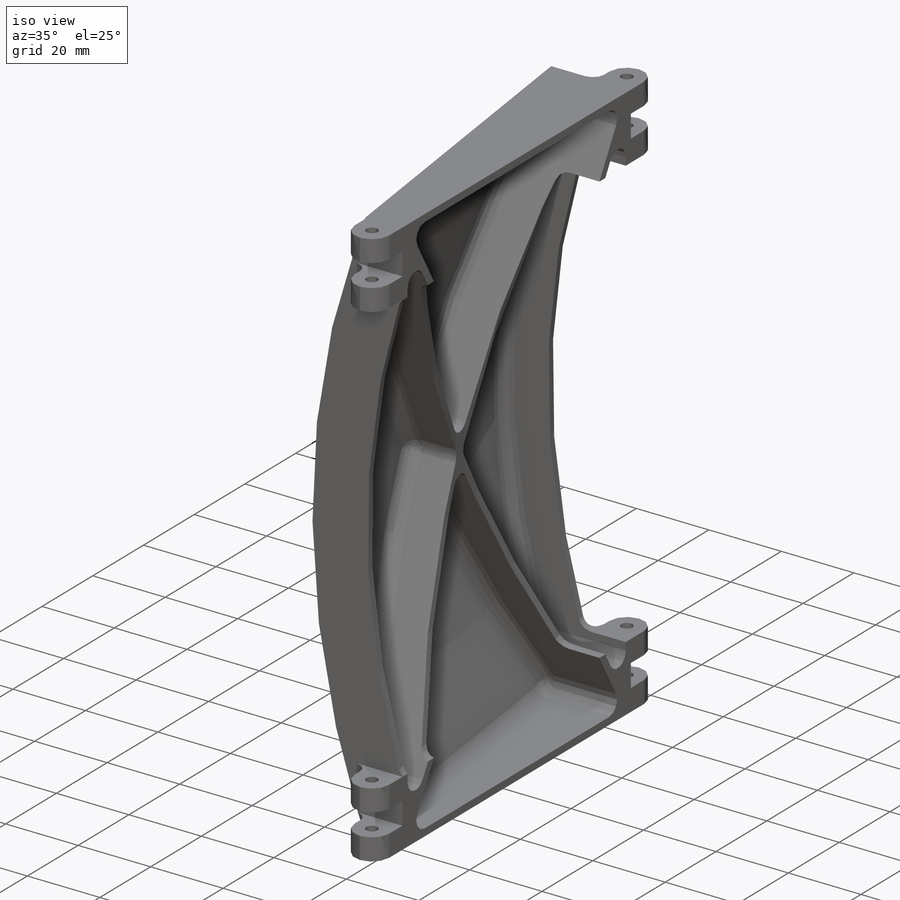
[diagram: iso view]
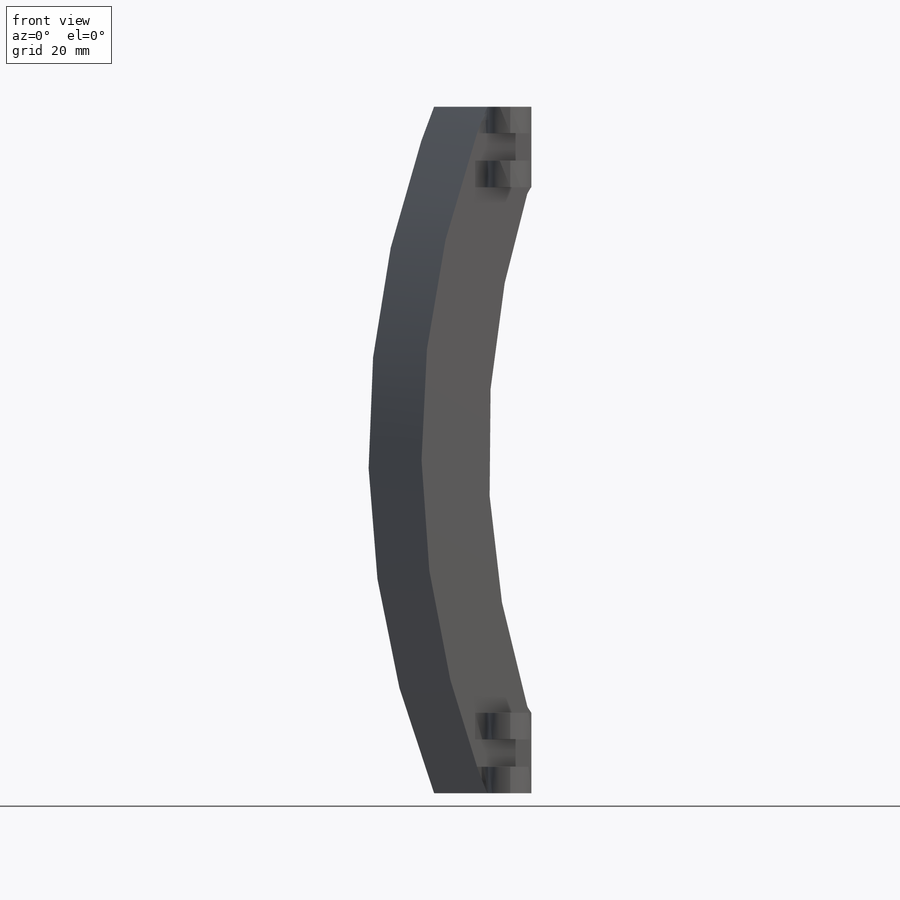
[diagram: front view]
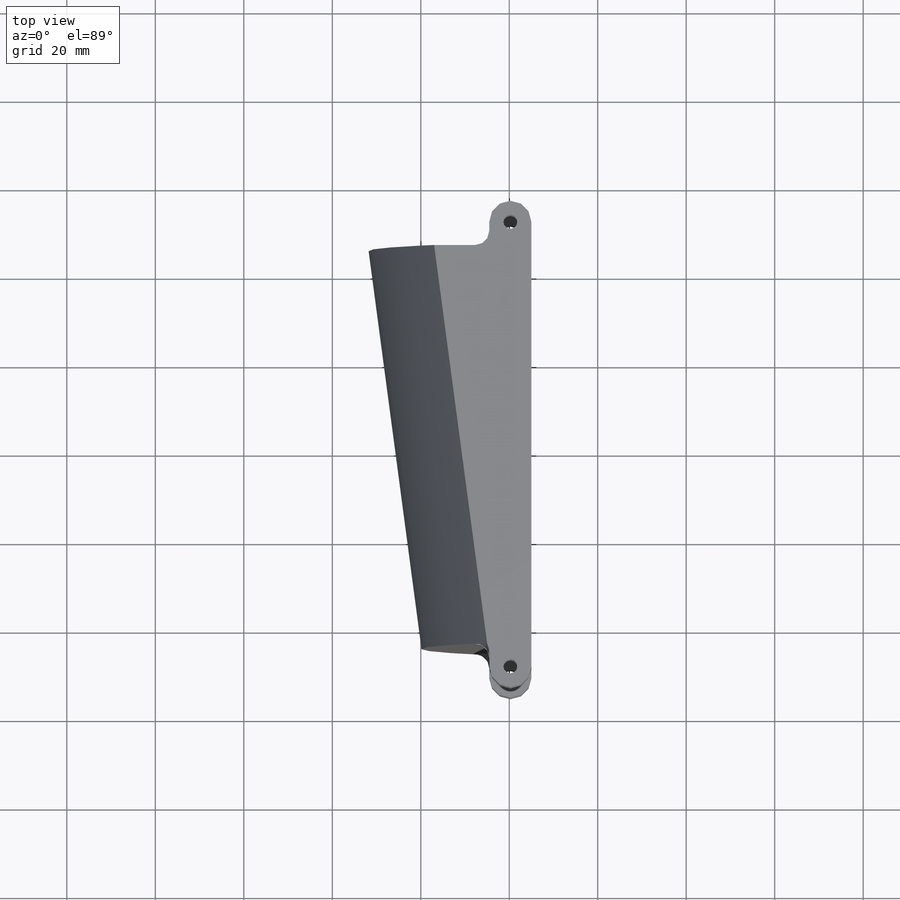
[diagram: top view]
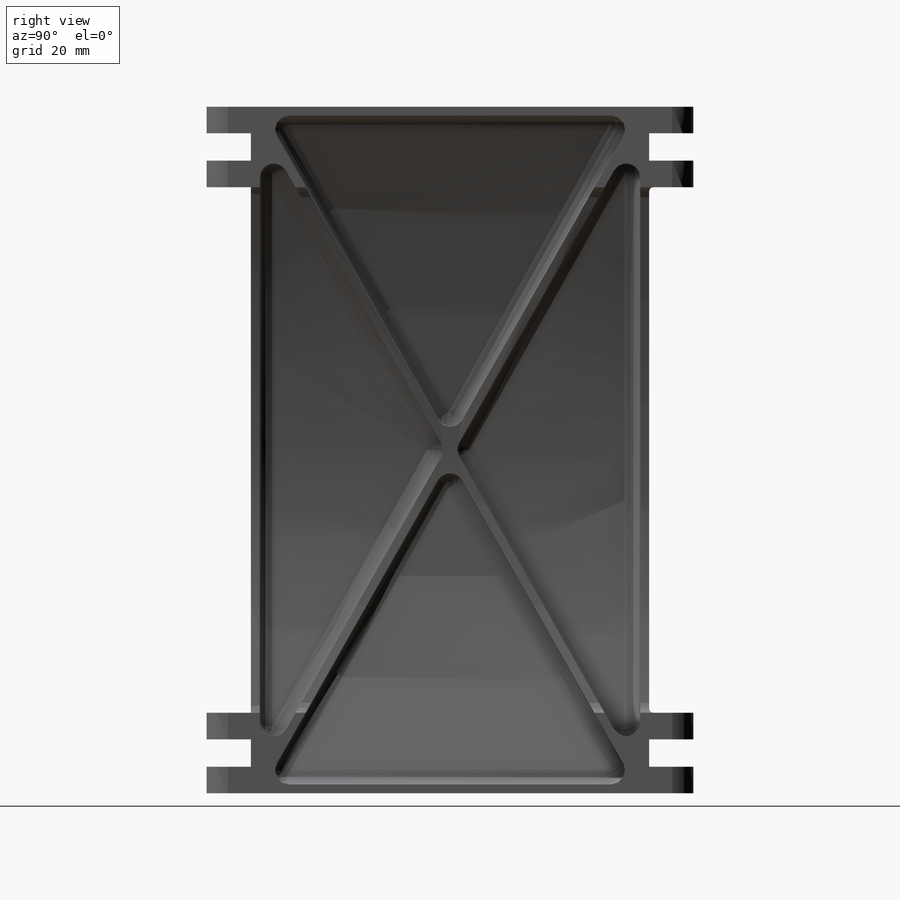
[diagram: right view]
SOLIDWORKS PART (.sldprt)
format: sldprt  version: not decoded by parser v0  size: 781,824 bytes
history: native  units: mm
features: sketch x13, cut_extrude x5, fillet x5, extrude x4, shell x2, mirror x2, material x1, plane x1, hole x1, boolean_combine x1 (+11 scaffold rows collapsed)
feature tree (46):
  scaffold x11  (default folders/planes/origin — collapsed)
  material  "6061 Alloy"
  sketch  "Sketch1"  dims[D1=90.0mm D2=10.0mm]
  extrude  "Boss-Extrude1"  Depth=155.2mm
  plane  "Plane2"
  sketch  "Sketch7"  dims[D2=212.0mm D1=0.0mm]
  extrude  "Boss-Extrude5"  [1 undecoded]
  sketch  "Sketch8"
  extrude  "Boss-Extrude6"  [1 undecoded]
  sketch  "Sketch9"  dims[D1=~46.119844mm D2=~26.286566mm]
  cut_extrude  "Cut-Extrude3"  [1 undecoded]
  shell  "Shell2"  Thickness=2mm
  sketch  "Sketch10"  dims[D5=2.0mm D6=10.0mm D7=5.0mm]
  sketch  "Sketch11"
  shell  "Extrude-Thin2"  Thickness=2mm
  fillet  "Fillet7"  Radius=3.175mm
  fillet  "Fillet8"  Radius=3.175mm
  sketch  "Sketch12"  dims[D2=18.2mm D1=15.0mm]
  cut_extrude  "Cut-Extrude4"  [1 undecoded]
  sketch  "Sketch13"  dims[D3=3.175mm D1=9.525mm D2=10.0mm]
  extrude  "Boss-Extrude7"  [1 undecoded]
  hole  "#31 (0.12) Diameter Hole1"  Diameter=3.048mm Depth=18.2mm
  sketch  "3DSketch1"
  sketch  "Sketch15"  dims[hole-wizard template sketch: 46 standard entries collapsed; hole parameters kept: c15.Hole Dia.=3.048mm c15.Hole Depth=18.2mm c15.D3=~14.816244mm c15.Drill Angle=118.0deg]
  sketch  "Sketch14"  dims[D1=6.2mm]
  cut_extrude  "Cut-Extrude5"  [1 undecoded]
  sketch  "Sketch16"  dims[D1=~3.18262mm]
  cut_extrude  "ream clearence"  [1 undecoded]
  sketch  "Sketch17"  dims[D1=~3.16738mm]
  cut_extrude  "ream interference"  [1 undecoded]
  mirror  "Mirror1"
  mirror  "Mirror2"
  boolean_combine  "Combine1"
  fillet  "Fillet10"  Radius=3.175mm
  fillet  "Fillet11"  Radius=4.7625mm
  fillet  "Fillet12"  Radius=3.175mm
decode coverage: 19 of 33 modeling features carry decoded parameters
note: ~ marks probable driven/reference dimensions
note: 8 parameter values undecoded
summary: no parameter record found for 8 features
note: suppression state not decoded; provenance and decode notes live in map.json
